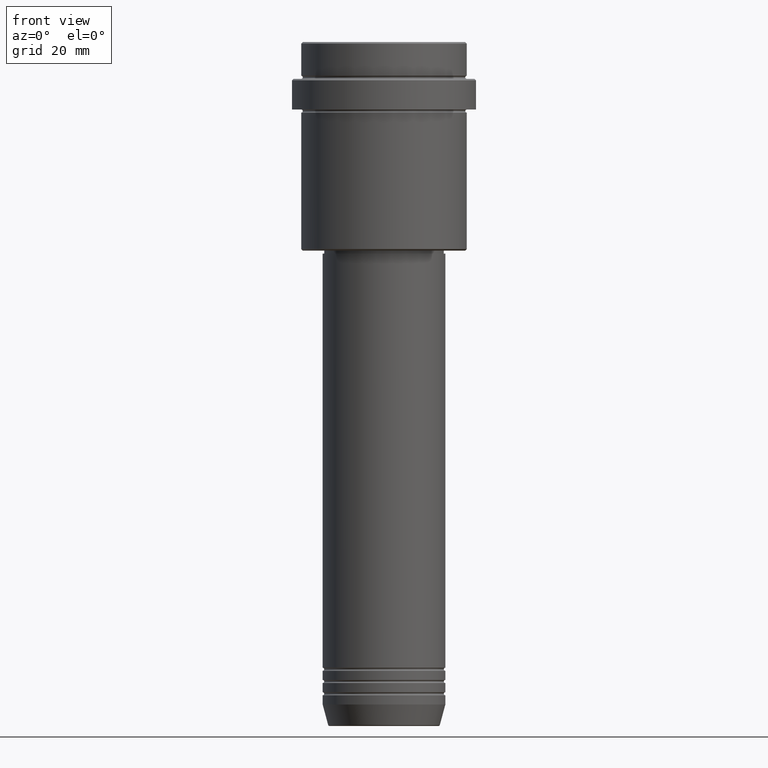
[diagram: clean part render]
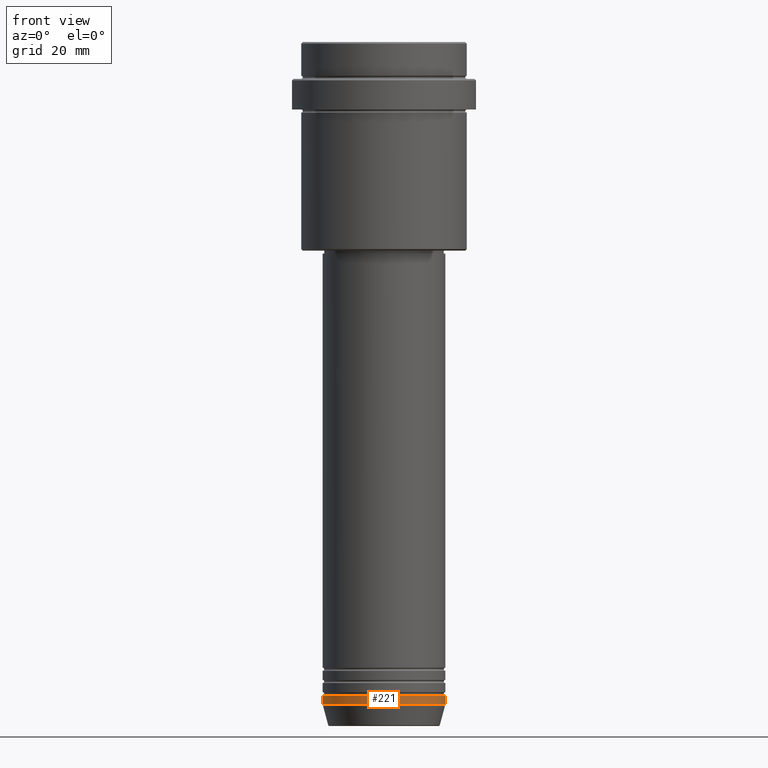
[diagram: same view with one face highlighted and labeled with its STEP entity id]
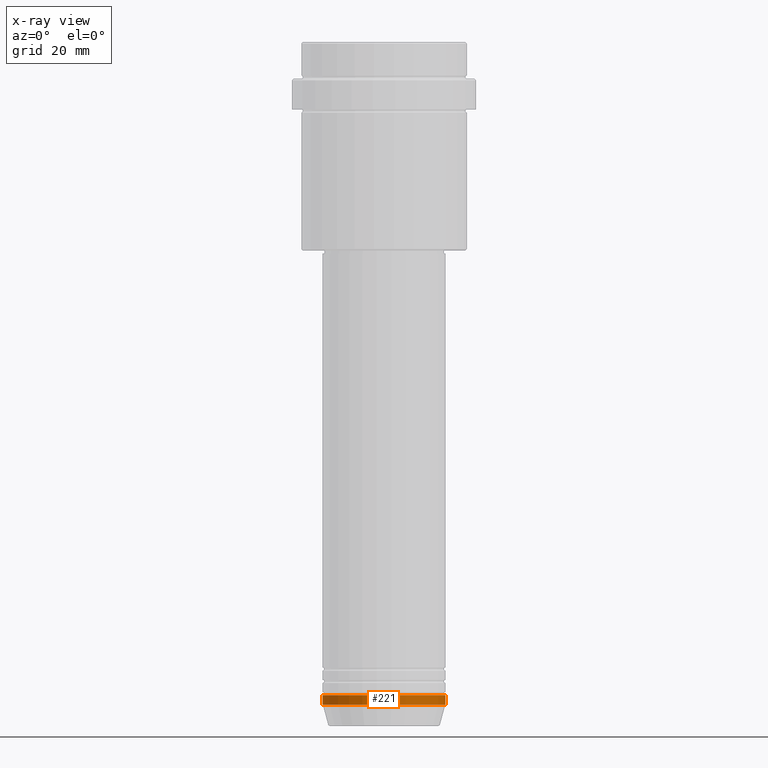
[diagram: x-ray of the same camera — body ghosted, the highlighted face saturated]
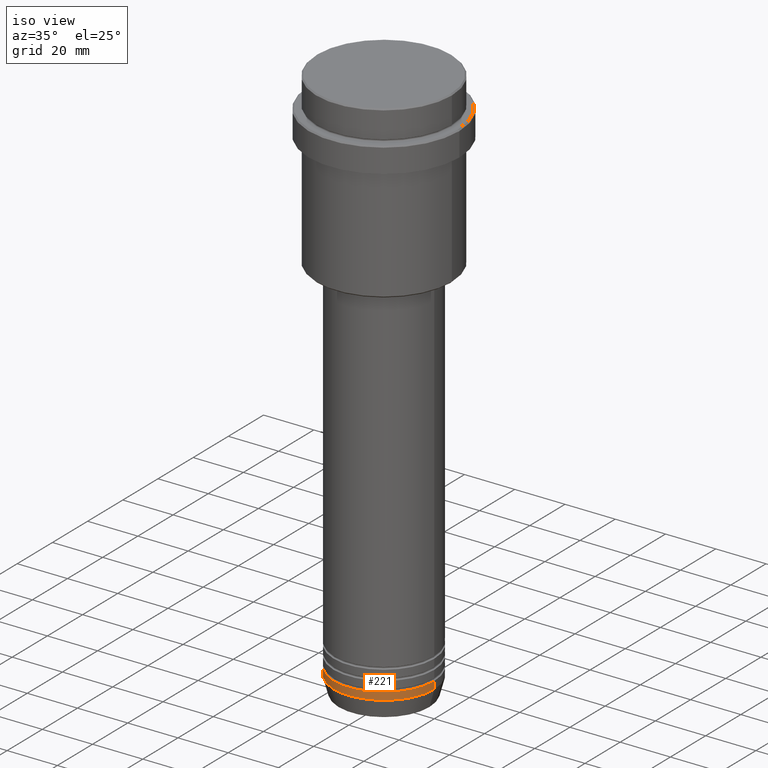
[diagram: same view with one face highlighted and labeled with its STEP entity id]
A machine part, front view. The second image highlights one B-rep face of the part: STEP entity #221.
The next image is the same camera in x-ray: the body ghosted, the highlighted face saturated — about 0% of this face is hidden behind the body in this view.
A second angle (iso view) of the same face is appended — the face is thin or edge-on in the first view.
In plain terms, the highlighted cylindrical surface (partial cylindrical patch) has radius 20 mm, axis along (-0, -0, 1).
Its self-contained STEP definition (entity closure, byte-faithful):
#3 = ORIENTED_EDGE ( 'NONE', *, *, #1091, .F. ) ;
#69 = CARTESIAN_POINT ( 'NONE',  ( -20.00000000000000000, 2.449293598294706513E-15, -212.9999999999999716 ) ) ;
#71 = VECTOR ( 'NONE', #743, 1000.000000000000000 ) ;
#115 = CIRCLE ( 'NONE', #909, 20.00000000000000000 ) ;
#116 = CIRCLE ( 'NONE', #937, 20.00000000000000000 ) ;
#171 = LINE ( 'NONE', #495, #71 ) ;
#178 = DIRECTION ( 'NONE',  ( -0.000000000000000000, -0.000000000000000000, 1.000000000000000000 ) ) ;
#221 = ADVANCED_FACE ( 'NONE', ( #1183 ), #1176, .T. ) ;
#264 = VERTEX_POINT ( 'NONE', #69 ) ;
#295 = ORIENTED_EDGE ( 'NONE', *, *, #849, .T. ) ;
#322 = ORIENTED_EDGE ( 'NONE', *, *, #766, .F. ) ;
#344 = CARTESIAN_POINT ( 'NONE',  ( -20.00000000000000000, 2.449293598294706513E-15, -215.9999999999999716 ) ) ;
#387 = CARTESIAN_POINT ( 'NONE',  ( 0.000000000000000000, 0.000000000000000000, -212.9999999999999716 ) ) ;
#393 = CARTESIAN_POINT ( 'NONE',  ( 0.000000000000000000, 0.000000000000000000, 0.000000000000000000 ) ) ;
#399 = CARTESIAN_POINT ( 'NONE',  ( 20.00000000000000000, 0.000000000000000000, 0.000000000000000000 ) ) ;
#455 = CARTESIAN_POINT ( 'NONE',  ( 0.000000000000000000, 0.000000000000000000, -215.9999999999999716 ) ) ;
#495 = CARTESIAN_POINT ( 'NONE',  ( -20.00000000000000000, 2.449293598294706513E-15, 0.000000000000000000 ) ) ;
#617 = AXIS2_PLACEMENT_3D ( 'NONE', #393, #1159, #1261 ) ;
#624 = ORIENTED_EDGE ( 'NONE', *, *, #1208, .T. ) ;
#637 = EDGE_LOOP ( 'NONE', ( #322, #295, #624, #3 ) ) ;
#662 = DIRECTION ( 'NONE',  ( 1.000000000000000000, 0.000000000000000000, 0.000000000000000000 ) ) ;
#673 = VERTEX_POINT ( 'NONE', #344 ) ;
#698 = CARTESIAN_POINT ( 'NONE',  ( 20.00000000000000000, 0.000000000000000000, -215.9999999999999716 ) ) ;
#743 = DIRECTION ( 'NONE',  ( -0.000000000000000000, -0.000000000000000000, 1.000000000000000000 ) ) ;
#766 = EDGE_CURVE ( 'NONE', #673, #264, #171, .T. ) ;
#799 = VERTEX_POINT ( 'NONE', #927 ) ;
#825 = DIRECTION ( 'NONE',  ( -0.000000000000000000, -0.000000000000000000, 1.000000000000000000 ) ) ;
#849 = EDGE_CURVE ( 'NONE', #673, #944, #115, .T. ) ;
#886 = DIRECTION ( 'NONE',  ( -0.000000000000000000, -0.000000000000000000, 1.000000000000000000 ) ) ;
#909 = AXIS2_PLACEMENT_3D ( 'NONE', #455, #886, #1329 ) ;
#927 = CARTESIAN_POINT ( 'NONE',  ( 20.00000000000000000, 0.000000000000000000, -212.9999999999999716 ) ) ;
#937 = AXIS2_PLACEMENT_3D ( 'NONE', #387, #178, #662 ) ;
#944 = VERTEX_POINT ( 'NONE', #698 ) ;
#1091 = EDGE_CURVE ( 'NONE', #264, #799, #116, .T. ) ;
#1096 = VECTOR ( 'NONE', #825, 1000.000000000000000 ) ;
#1159 = DIRECTION ( 'NONE',  ( -0.000000000000000000, -0.000000000000000000, 1.000000000000000000 ) ) ;
#1176 = CYLINDRICAL_SURFACE ( 'NONE', #617, 20.00000000000000000 ) ;
#1183 = FACE_OUTER_BOUND ( 'NONE', #637, .T. ) ;
#1208 = EDGE_CURVE ( 'NONE', #944, #799, #1257, .T. ) ;
#1257 = LINE ( 'NONE', #399, #1096 ) ;
#1261 = DIRECTION ( 'NONE',  ( 1.000000000000000000, 0.000000000000000000, 0.000000000000000000 ) ) ;
#1329 = DIRECTION ( 'NONE',  ( 1.000000000000000000, 0.000000000000000000, 0.000000000000000000 ) ) ;